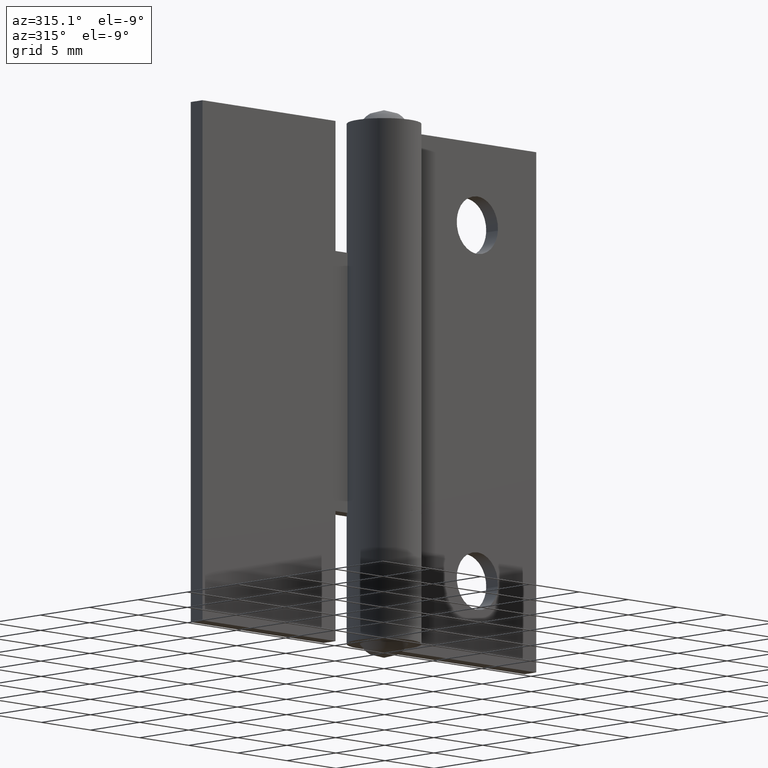
[diagram: clean part render]
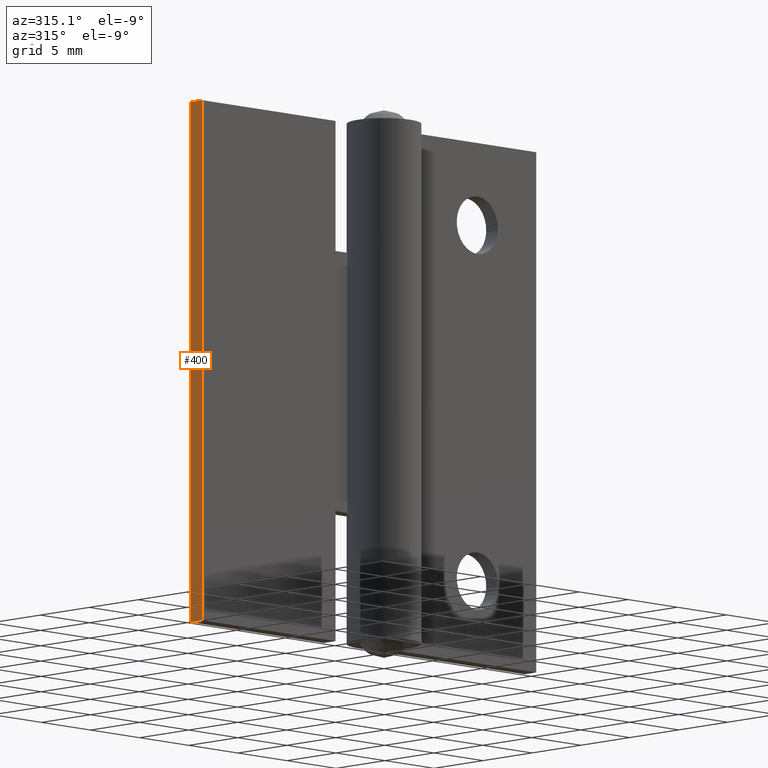
[diagram: same view with one face highlighted and labeled with its STEP entity id]
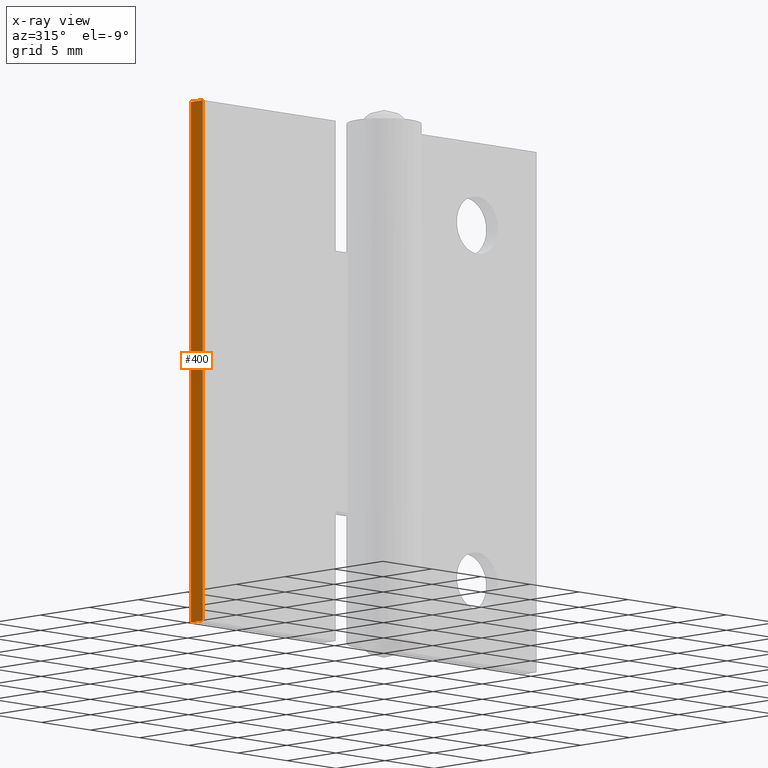
[diagram: x-ray of the same camera — body ghosted, the highlighted face saturated]
A machine part, auxiliary view. The second image highlights one B-rep face of the part: STEP entity #400.
The next image is the same camera in x-ray: the body ghosted, the highlighted face saturated — about 0% of this face is hidden behind the body in this view.
In plain terms, the highlighted face is a freeform B-spline surface patch.
Its self-contained STEP definition (entity closure, byte-faithful):
#156=CARTESIAN_POINT('',(-17.0,1.499999000000000,38.0));
#157=VERTEX_POINT('',#156);
#163=CARTESIAN_POINT('',(-17.0,1.499999000000000,0.0));
#164=VERTEX_POINT('',#163);
#165=CARTESIAN_POINT('',(-17.0,1.499999000000000,38.0));
#166=CARTESIAN_POINT('',(-17.0,1.499999000000000,0.0));
#167=QUASI_UNIFORM_CURVE('',1,(#165,#166),.UNSPECIFIED.,.F.,.U.);
#168=EDGE_CURVE('',#157,#164,#167,.T.);
#364=CARTESIAN_POINT('',(-17.0,2.700000000000000,38.0));
#365=VERTEX_POINT('',#364);
#371=CARTESIAN_POINT('',(-17.0,2.700000000000000,38.0));
#372=CARTESIAN_POINT('',(-17.0,1.499999000000000,38.0));
#373=QUASI_UNIFORM_CURVE('',1,(#371,#372),.UNSPECIFIED.,.F.,.U.);
#374=EDGE_CURVE('',#365,#157,#373,.T.);
#379=CARTESIAN_POINT('',(-17.0,1.440058952375834,39.898099926348621));
#380=CARTESIAN_POINT('',(-17.0,1.440058952375834,-1.898100945588053));
#381=CARTESIAN_POINT('',(-17.0,2.759940079810700,39.898099926348621));
#382=CARTESIAN_POINT('',(-17.0,2.759940079810700,-1.898100945588053));
#383=B_SPLINE_SURFACE_WITH_KNOTS('',1,1,((#379,#381),(#380,#382)),.UNSPECIFIED.,.F.,.F.,.U.,(2,2),(2,2),(0.0,41.796200871936684),(0.041708334948495,0.958291687403247),.UNSPECIFIED.);
#384=CARTESIAN_POINT('',(-17.0,2.700000000000000,0.0));
#385=VERTEX_POINT('',#384);
#386=CARTESIAN_POINT('',(-17.0,2.700000000000000,0.0));
#387=CARTESIAN_POINT('',(-17.0,1.499999000000000,0.0));
#388=QUASI_UNIFORM_CURVE('',1,(#386,#387),.UNSPECIFIED.,.F.,.U.);
#389=EDGE_CURVE('',#385,#164,#388,.T.);
#390=ORIENTED_EDGE('',*,*,#389,.T.);
#391=ORIENTED_EDGE('',*,*,#168,.F.);
#392=ORIENTED_EDGE('',*,*,#374,.F.);
#393=CARTESIAN_POINT('',(-17.0,2.700000000000000,38.0));
#394=CARTESIAN_POINT('',(-17.0,2.700000000000000,0.0));
#395=QUASI_UNIFORM_CURVE('',1,(#393,#394),.UNSPECIFIED.,.F.,.U.);
#396=EDGE_CURVE('',#365,#385,#395,.T.);
#397=ORIENTED_EDGE('',*,*,#396,.T.);
#398=EDGE_LOOP('',(#390,#391,#392,#397));
#399=FACE_OUTER_BOUND('',#398,.T.);
#400=ADVANCED_FACE('',(#399),#383,.F.);